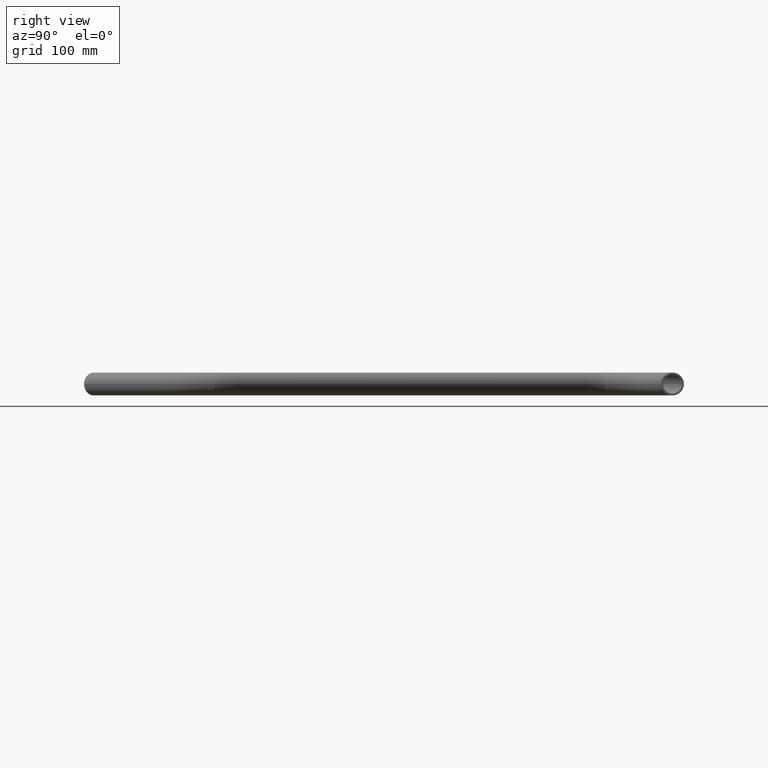
[diagram: clean part render]
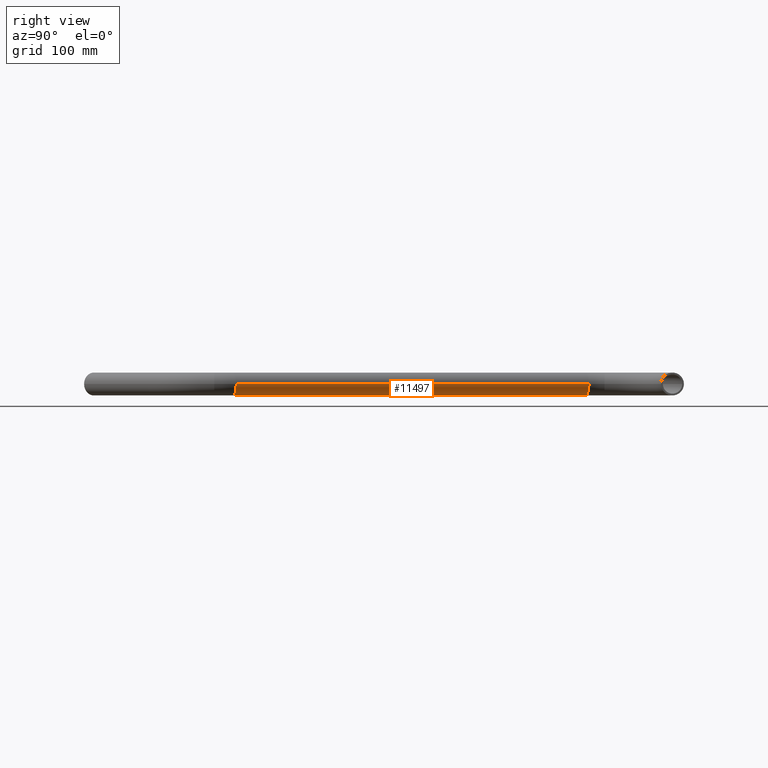
[diagram: same view with one face highlighted and labeled with its STEP entity id]
A machine part, right view. The second image highlights one B-rep face of the part: STEP entity #11497.
In plain terms, the highlighted cylindrical surface (edge-blend (fillet) strip) has radius 16.85 mm, axis along (-0.2756, 0.9613, 0).
Its self-contained STEP definition (entity closure, byte-faithful):
#1030 = CARTESIAN_POINT ( 'NONE',  ( 26.21633487958419200, 719.2953395929409900, 0.0000000000000000000 ) ) ;
#1077 = VECTOR ( 'NONE', #2425, 1000.000000000000200 ) ;
#1737 = EDGE_CURVE ( 'NONE', #10446, #4857, #3578, .T. ) ;
#1831 = VERTEX_POINT ( 'NONE', #4010 ) ;
#1877 = CYLINDRICAL_SURFACE ( 'NONE', #8399, 16.85000000000000100 ) ;
#1928 = DIRECTION ( 'NONE',  ( -0.2756373558170607800, 0.9612616959383011300, 0.0000000000000000000 ) ) ;
#1944 = CARTESIAN_POINT ( 'NONE',  ( 191.2412594555299000, 204.9160804766116300, 0.0000000000000000000 ) ) ;
#2048 = ORIENTED_EDGE ( 'NONE', *, *, #11960, .F. ) ;
#2425 = DIRECTION ( 'NONE',  ( -0.2756373558170607800, 0.9612616959383011300, 0.0000000000000000000 ) ) ;
#3032 = DIRECTION ( 'NONE',  ( -0.2756373558170608400, 0.9612616959383013500, 0.0000000000000000000 ) ) ;
#3253 = DIRECTION ( 'NONE',  ( -0.2756373558170595600, 0.9612616959383015700, -0.0000000000000000000 ) ) ;
#3436 = AXIS2_PLACEMENT_3D ( 'NONE', #8608, #3032, #9550 ) ;
#3450 = ORIENTED_EDGE ( 'NONE', *, *, #4165, .T. ) ;
#3578 = LINE ( 'NONE', #6125, #1077 ) ;
#3721 = CARTESIAN_POINT ( 'NONE',  ( 207.4385190320903100, 209.5605699221289100, 2.063529856563290600E-015 ) ) ;
#3745 = DIRECTION ( 'NONE',  ( -0.9612616959383010200, -0.2756373558170614500, 0.0000000000000000000 ) ) ;
#4010 = CARTESIAN_POINT ( 'NONE',  ( 175.0439998789695700, 200.2715910310939200, 0.0000000000000000000 ) ) ;
#4165 = EDGE_CURVE ( 'NONE', #1831, #11171, #8660, .T. ) ;
#4857 = VERTEX_POINT ( 'NONE', #9839 ) ;
#4964 = CIRCLE ( 'NONE', #3436, 16.85000000000000100 ) ;
#5051 = AXIS2_PLACEMENT_3D ( 'NONE', #8838, #3253, #9780 ) ;
#6125 = CARTESIAN_POINT ( 'NONE',  ( 207.4385190320902600, 209.5605699221291000, 2.063529856563290600E-015 ) ) ;
#7266 = ORIENTED_EDGE ( 'NONE', *, *, #1737, .F. ) ;
#7525 = CARTESIAN_POINT ( 'NONE',  ( 175.0439998789695200, 200.2715910310941200, 0.0000000000000000000 ) ) ;
#7805 = ORIENTED_EDGE ( 'NONE', *, *, #10577, .T. ) ;
#8123 = EDGE_LOOP ( 'NONE', ( #7266, #7805, #3450, #2048 ) ) ;
#8399 = AXIS2_PLACEMENT_3D ( 'NONE', #1944, #10301, #3745 ) ;
#8608 = CARTESIAN_POINT ( 'NONE',  ( 191.2412594555299600, 204.9160804766114300, 0.0000000000000000000 ) ) ;
#8660 = LINE ( 'NONE', #7525, #11448 ) ;
#8838 = CARTESIAN_POINT ( 'NONE',  ( 42.41359445614453700, 723.9398290384585800, 0.0000000000000000000 ) ) ;
#9316 = FACE_OUTER_BOUND ( 'NONE', #8123, .T. ) ;
#9550 = DIRECTION ( 'NONE',  ( -0.9612616959383010200, -0.2756373558170614500, 0.0000000000000000000 ) ) ;
#9780 = DIRECTION ( 'NONE',  ( 0.9612616959383020200, 0.2756373558170583400, 0.0000000000000000000 ) ) ;
#9839 = CARTESIAN_POINT ( 'NONE',  ( 58.61085403270494300, 728.5843184839759500, 2.063529856563290600E-015 ) ) ;
#10301 = DIRECTION ( 'NONE',  ( -0.2756373558170608400, 0.9612616959383013500, 0.0000000000000000000 ) ) ;
#10446 = VERTEX_POINT ( 'NONE', #3721 ) ;
#10577 = EDGE_CURVE ( 'NONE', #10446, #1831, #4964, .T. ) ;
#11171 = VERTEX_POINT ( 'NONE', #1030 ) ;
#11417 = CIRCLE ( 'NONE', #5051, 16.84999999999999100 ) ;
#11448 = VECTOR ( 'NONE', #1928, 1000.000000000000200 ) ;
#11497 = ADVANCED_FACE ( 'NONE', ( #9316 ), #1877, .T. ) ;
#11960 = EDGE_CURVE ( 'NONE', #4857, #11171, #11417, .T. ) ;